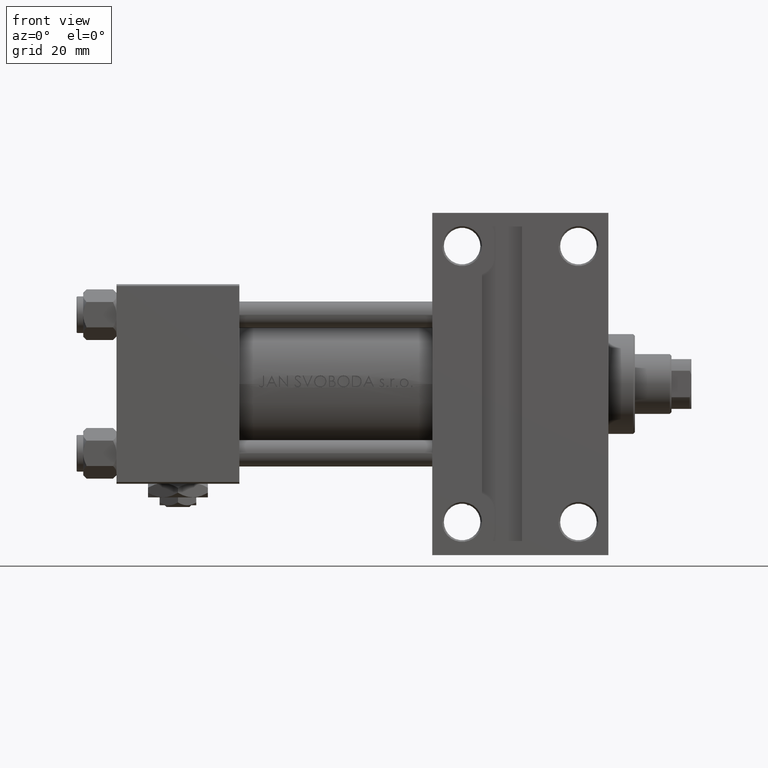
[diagram: clean part render]
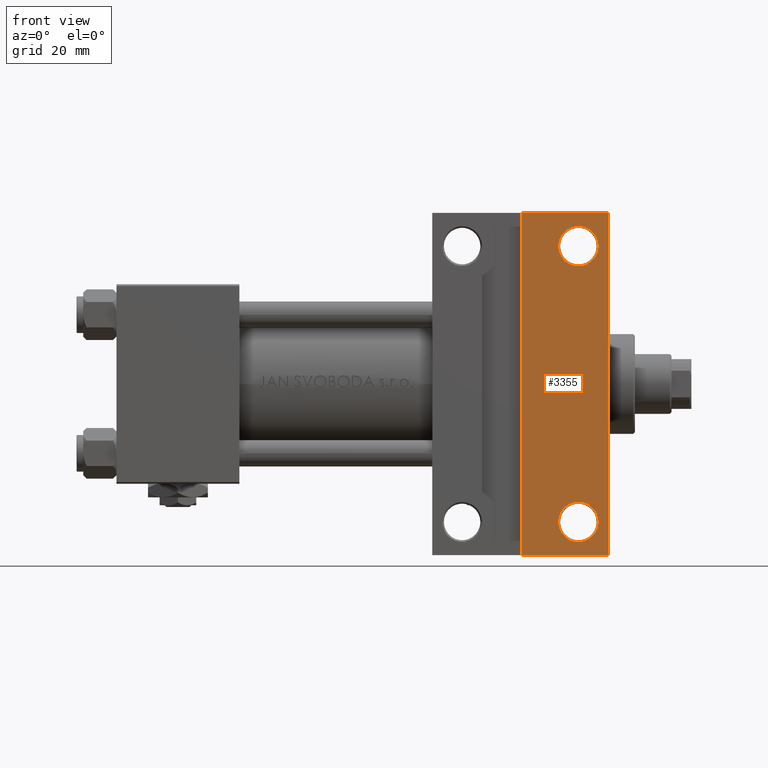
[diagram: same view with one face highlighted and labeled with its STEP entity id]
A machine part, front view. The second image highlights one B-rep face of the part: STEP entity #3355.
In plain terms, the highlighted planar face has unit normal (0, -1, -0).
Its self-contained STEP definition (entity closure, byte-faithful):
#635 = CARTESIAN_POINT ( 'NONE',  ( 144.9994999999999550, -41.50000000000000000, -30.00000000000000000 ) ) ;
#658 = DIRECTION ( 'NONE',  ( 1.000000000000000000, -2.618450529776313247E-16, 0.000000000000000000 ) ) ;
#1865 = DIRECTION ( 'NONE',  ( 0.000000000000000000, 1.000000000000000000, 0.000000000000000000 ) ) ;
#1954 = CARTESIAN_POINT ( 'NONE',  ( 138.9999999999999432, -41.50000000000000000, -30.00000000000000000 ) ) ;
#2464 = DIRECTION ( 'NONE',  ( 0.000000000000000000, 1.000000000000000000, 1.156482317317871478E-16 ) ) ;
#2471 = AXIS2_PLACEMENT_3D ( 'NONE', #42604, #11542, #15126 ) ;
#2720 = DIRECTION ( 'NONE',  ( 0.000000000000000000, 1.156482317317871478E-16, -1.000000000000000000 ) ) ;
#3053 = AXIS2_PLACEMENT_3D ( 'NONE', #44736, #25189, #1865 ) ;
#3355 = ADVANCED_FACE ( 'NONE', ( #18875, #21940, #14776 ), #30428, .T. ) ;
#3795 = VECTOR ( 'NONE', #46587, 1000.000000000000000 ) ;
#4100 = VECTOR ( 'NONE', #15307, 1000.000000000000000 ) ;
#4393 = CIRCLE ( 'NONE', #33051, 5.999499999999990507 ) ;
#5984 = EDGE_CURVE ( 'NONE', #18017, #50102, #4393, .T. ) ;
#6530 = DIRECTION ( 'NONE',  ( -0.000000000000000000, -1.156482317317871478E-16, 1.000000000000000000 ) ) ;
#6570 = CARTESIAN_POINT ( 'NONE',  ( 148.0000000000000000, 30.00000000000000000, -29.99999999999999289 ) ) ;
#7052 = CARTESIAN_POINT ( 'NONE',  ( 121.9999999999999858, -51.49999999999999289, -29.99999999999999645 ) ) ;
#8041 = ORIENTED_EDGE ( 'NONE', *, *, #16006, .F. ) ;
#10469 = CARTESIAN_POINT ( 'NONE',  ( 144.9994999999999266, 41.50000000000000000, -29.99999999999999289 ) ) ;
#11542 = DIRECTION ( 'NONE',  ( -0.000000000000000000, -1.156482317317871478E-16, 1.000000000000000000 ) ) ;
#12603 = EDGE_CURVE ( 'NONE', #40624, #31736, #19898, .T. ) ;
#13239 = VERTEX_POINT ( 'NONE', #7052 ) ;
#13914 = ORIENTED_EDGE ( 'NONE', *, *, #5984, .T. ) ;
#14776 = FACE_BOUND ( 'NONE', #35557, .T. ) ;
#15126 = DIRECTION ( 'NONE',  ( 0.000000000000000000, 1.000000000000000000, 0.000000000000000000 ) ) ;
#15307 = DIRECTION ( 'NONE',  ( -0.000000000000000000, -1.000000000000000000, -0.000000000000000000 ) ) ;
#16006 = EDGE_CURVE ( 'NONE', #40624, #13239, #30711, .T. ) ;
#16515 = EDGE_CURVE ( 'NONE', #40048, #21148, #26196, .T. ) ;
#17583 = DIRECTION ( 'NONE',  ( 0.000000000000000000, 1.000000000000000000, 0.000000000000000000 ) ) ;
#18017 = VERTEX_POINT ( 'NONE', #635 ) ;
#18661 = CARTESIAN_POINT ( 'NONE',  ( 133.0004999999999598, -41.50000000000000000, -30.00000000000000000 ) ) ;
#18875 = FACE_OUTER_BOUND ( 'NONE', #46822, .T. ) ;
#19898 = LINE ( 'NONE', #35576, #26931 ) ;
#21148 = VERTEX_POINT ( 'NONE', #10469 ) ;
#21940 = FACE_BOUND ( 'NONE', #28204, .T. ) ;
#23905 = ORIENTED_EDGE ( 'NONE', *, *, #46377, .T. ) ;
#25189 = DIRECTION ( 'NONE',  ( -0.000000000000000000, -1.156482317317871478E-16, 1.000000000000000000 ) ) ;
#25961 = LINE ( 'NONE', #41639, #41413 ) ;
#26196 = CIRCLE ( 'NONE', #2471, 5.999499999999962974 ) ;
#26931 = VECTOR ( 'NONE', #658, 1000.000000000000000 ) ;
#27027 = CARTESIAN_POINT ( 'NONE',  ( 148.0000000000000000, -51.50000000000000711, -29.99999999999999645 ) ) ;
#28204 = EDGE_LOOP ( 'NONE', ( #23905, #13914 ) ) ;
#29103 = DIRECTION ( 'NONE',  ( 0.000000000000000000, 1.000000000000000000, 0.000000000000000000 ) ) ;
#29899 = DIRECTION ( 'NONE',  ( -0.000000000000000000, -1.156482317317871478E-16, 1.000000000000000000 ) ) ;
#30428 = PLANE ( 'NONE',  #49381 ) ;
#30711 = LINE ( 'NONE', #38415, #4100 ) ;
#31731 = VERTEX_POINT ( 'NONE', #27027 ) ;
#31736 = VERTEX_POINT ( 'NONE', #49898 ) ;
#32974 = CARTESIAN_POINT ( 'NONE',  ( 138.9999999999999432, -41.50000000000000000, -30.00000000000000000 ) ) ;
#33051 = AXIS2_PLACEMENT_3D ( 'NONE', #32974, #6530, #29103 ) ;
#35260 = ORIENTED_EDGE ( 'NONE', *, *, #16515, .T. ) ;
#35557 = EDGE_LOOP ( 'NONE', ( #35260, #45516 ) ) ;
#35576 = CARTESIAN_POINT ( 'NONE',  ( 95.00000000000000000, 51.50000000000000711, -29.99999999999999645 ) ) ;
#35647 = EDGE_CURVE ( 'NONE', #31736, #31731, #25961, .T. ) ;
#36908 = EDGE_CURVE ( 'NONE', #31731, #13239, #49935, .T. ) ;
#37772 = CARTESIAN_POINT ( 'NONE',  ( 133.0004999999999882, 41.50000000000000000, -29.99999999999999289 ) ) ;
#38094 = ORIENTED_EDGE ( 'NONE', *, *, #36908, .T. ) ;
#38415 = CARTESIAN_POINT ( 'NONE',  ( 121.9999999999999858, -51.49999999999999289, -29.99999999999999645 ) ) ;
#38958 = ORIENTED_EDGE ( 'NONE', *, *, #35647, .T. ) ;
#39918 = EDGE_CURVE ( 'NONE', #21148, #40048, #50611, .T. ) ;
#40048 = VERTEX_POINT ( 'NONE', #37772 ) ;
#40171 = CIRCLE ( 'NONE', #42553, 5.999499999999990507 ) ;
#40624 = VERTEX_POINT ( 'NONE', #46338 ) ;
#41413 = VECTOR ( 'NONE', #42673, 1000.000000000000000 ) ;
#41639 = CARTESIAN_POINT ( 'NONE',  ( 148.0000000000000000, 30.00000000000000000, -29.99999999999999289 ) ) ;
#42553 = AXIS2_PLACEMENT_3D ( 'NONE', #1954, #29899, #17583 ) ;
#42604 = CARTESIAN_POINT ( 'NONE',  ( 138.9999999999999432, 41.50000000000000000, -29.99999999999999289 ) ) ;
#42673 = DIRECTION ( 'NONE',  ( 0.000000000000000000, -1.000000000000000000, -1.156482317317871478E-16 ) ) ;
#42732 = CARTESIAN_POINT ( 'NONE',  ( 94.99999999999998579, -51.50000000000000711, -29.99999999999999645 ) ) ;
#44736 = CARTESIAN_POINT ( 'NONE',  ( 138.9999999999999432, 41.50000000000000000, -29.99999999999999289 ) ) ;
#45516 = ORIENTED_EDGE ( 'NONE', *, *, #39918, .T. ) ;
#46338 = CARTESIAN_POINT ( 'NONE',  ( 121.9999999999999858, 51.50000000000000711, -29.99999999999999645 ) ) ;
#46377 = EDGE_CURVE ( 'NONE', #50102, #18017, #40171, .T. ) ;
#46587 = DIRECTION ( 'NONE',  ( -1.000000000000000000, -0.000000000000000000, -0.000000000000000000 ) ) ;
#46822 = EDGE_LOOP ( 'NONE', ( #8041, #50149, #38958, #38094 ) ) ;
#49381 = AXIS2_PLACEMENT_3D ( 'NONE', #6570, #2720, #2464 ) ;
#49898 = CARTESIAN_POINT ( 'NONE',  ( 148.0000000000000000, 51.49999999999999289, -29.99999999999999645 ) ) ;
#49935 = LINE ( 'NONE', #42732, #3795 ) ;
#50102 = VERTEX_POINT ( 'NONE', #18661 ) ;
#50149 = ORIENTED_EDGE ( 'NONE', *, *, #12603, .T. ) ;
#50611 = CIRCLE ( 'NONE', #3053, 5.999499999999962974 ) ;